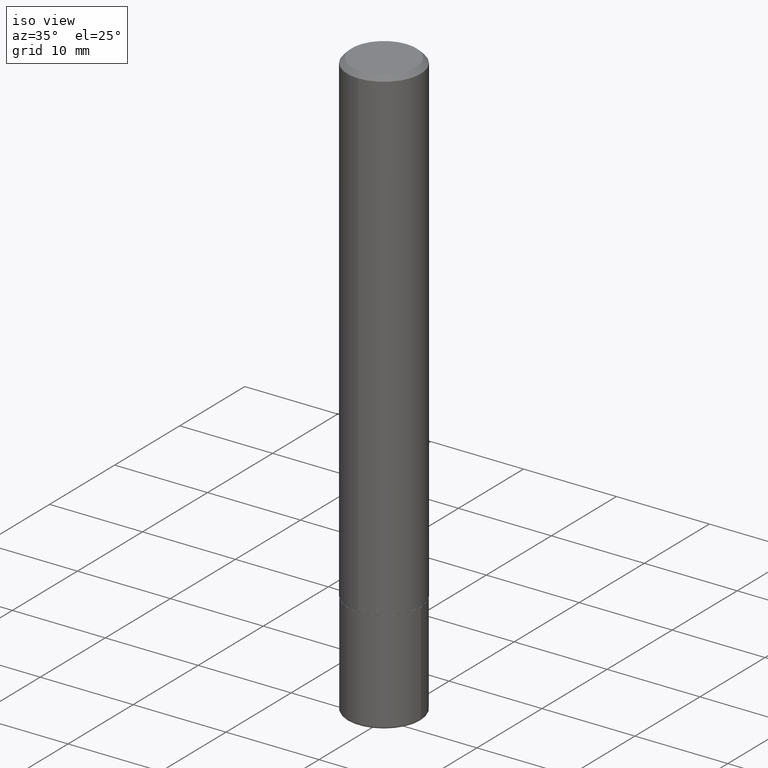
[diagram: clean part render]
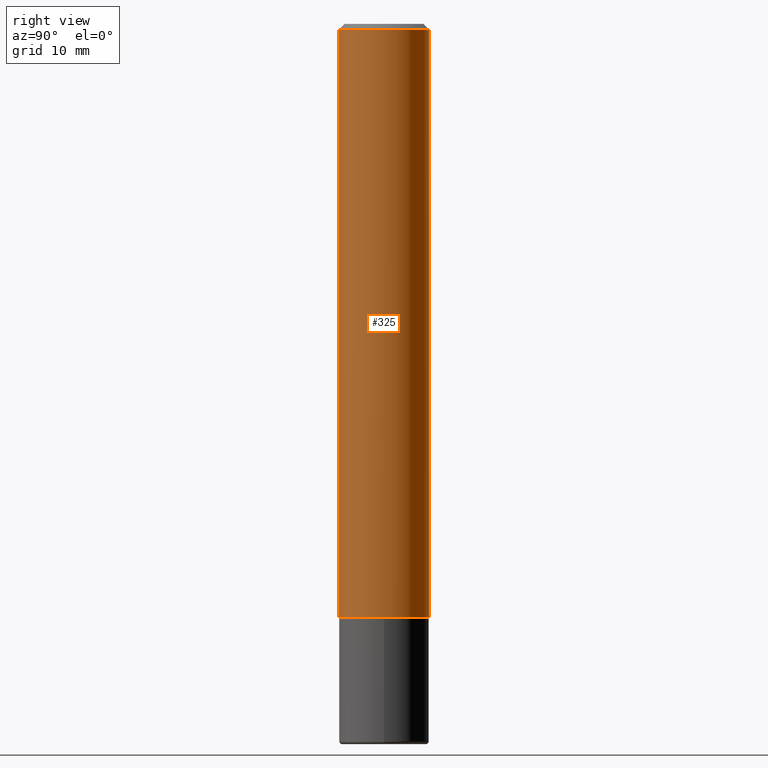
[diagram: tour spotlight — one face highlighted and labeled with its STEP entity id]
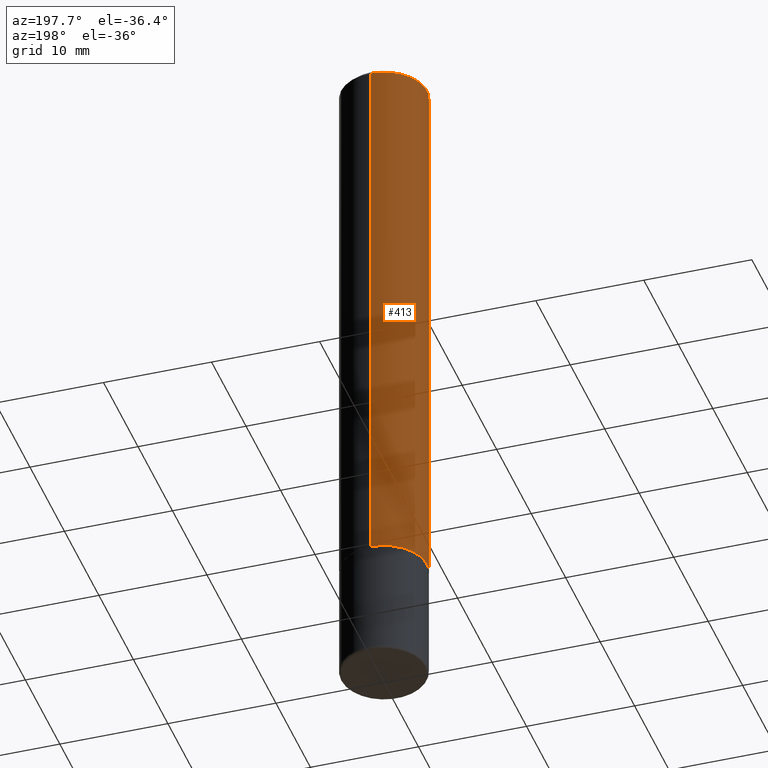
[diagram: tour spotlight — one face highlighted and labeled with its STEP entity id]
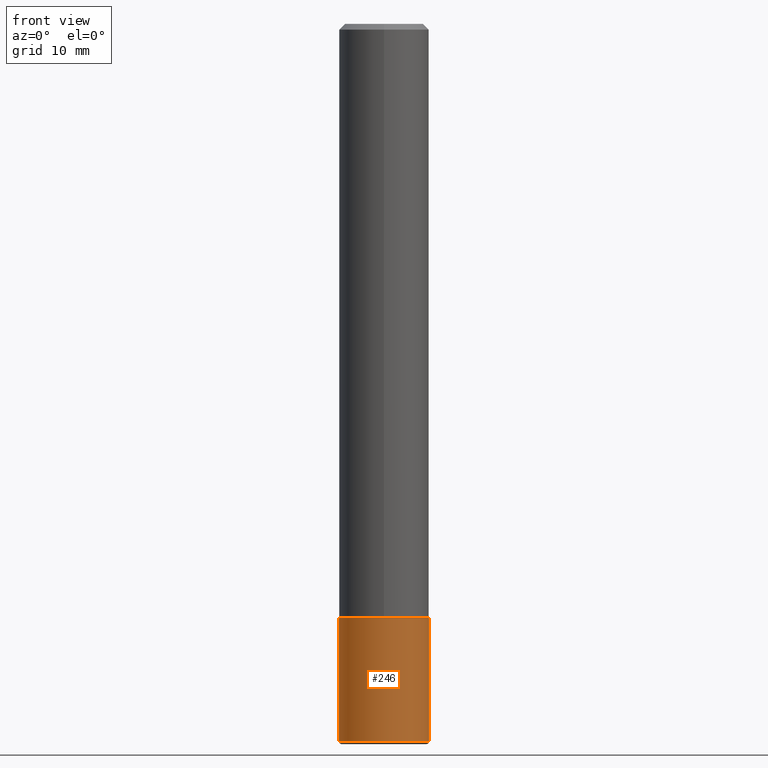
[diagram: tour spotlight — one face highlighted and labeled with its STEP entity id]
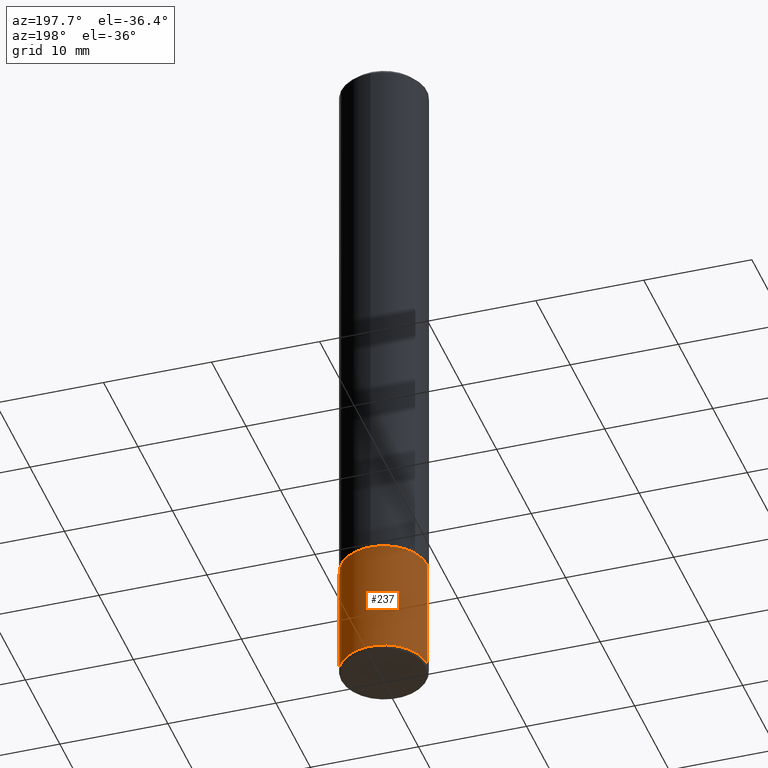
[diagram: tour spotlight — one face highlighted and labeled with its STEP entity id]
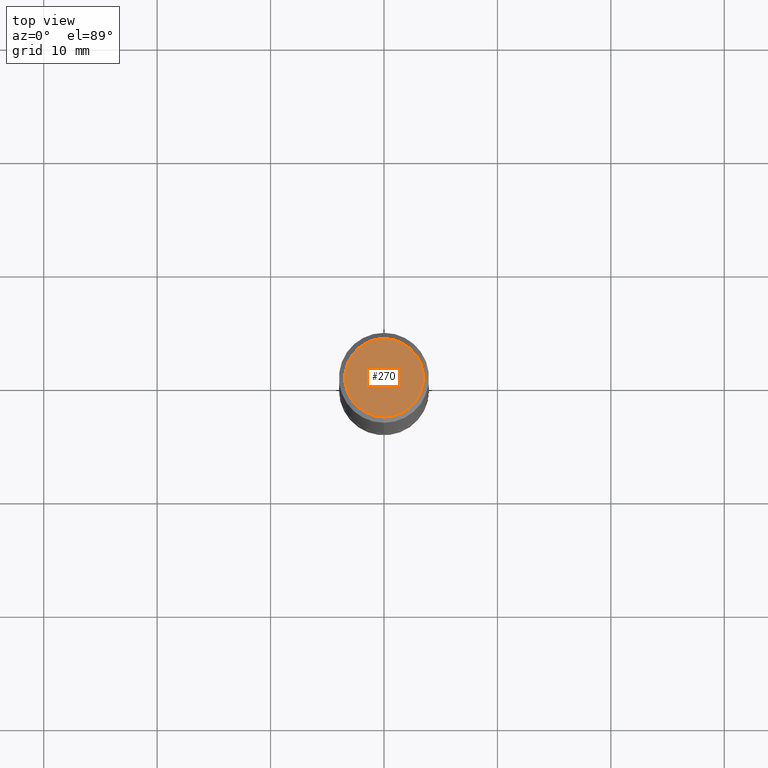
[diagram: tour spotlight — one face highlighted and labeled with its STEP entity id]
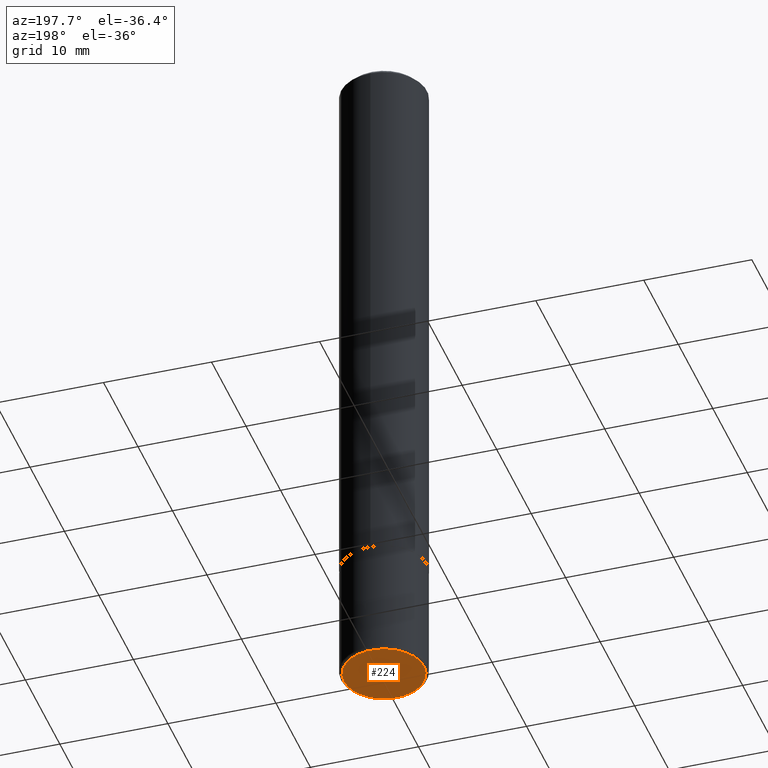
[diagram: tour spotlight — one face highlighted and labeled with its STEP entity id]
A machine part: a face-by-face anatomy tour. The part has 14 B-rep faces; the first image is the clean iso view, then the 6 largest visible faces are spotlighted one at a time (largest first), each with its STEP entity span.

Face 1 — right view, entity #325. In plain terms, the highlighted cylindrical surface (partial cylindrical patch) has radius 3.9688 mm, axis along (-0, 0, 1).
Definition (entity closure, byte-faithful):
#13 = VERTEX_POINT ( 'NONE', #221 ) ;
#34 = CARTESIAN_POINT ( 'NONE',  ( 5.042467530478845729E-29, -7.196065419597043772E-15, -2.061500000000000110 ) ) ;
#46 = VERTEX_POINT ( 'NONE', #78 ) ;
#70 = CARTESIAN_POINT ( 'NONE',  ( 1.091087918388479765E-15, 0.1562499999999999722, -0.02000000000000057981 ) ) ;
#78 = CARTESIAN_POINT ( 'NONE',  ( -1.071952812151801412E-15, -0.1562500000000001110, -0.01999999999999948694 ) ) ;
#79 = EDGE_CURVE ( 'NONE', #13, #134, #203, .T. ) ;
#84 = DIRECTION ( 'NONE',  ( -2.446018690506352654E-29, 3.490693873197692271E-15, 1.000000000000000000 ) ) ;
#86 = DIRECTION ( 'NONE',  ( -2.446018690506352654E-29, 3.490693873197692271E-15, 1.000000000000000000 ) ) ;
#90 = EDGE_LOOP ( 'NONE', ( #137, #186, #416, #202 ) ) ;
#91 = AXIS2_PLACEMENT_3D ( 'NONE', #245, #284, #372 ) ;
#110 = CARTESIAN_POINT ( 'NONE',  ( -1.091087918388479962E-15, -0.1562500000000001388, 5.454209176871399228E-16 ) ) ;
#120 = AXIS2_PLACEMENT_3D ( 'NONE', #34, #260, #158 ) ;
#122 = CIRCLE ( 'NONE', #265, 0.1562500000000000278 ) ;
#134 = VERTEX_POINT ( 'NONE', #70 ) ;
#135 = CARTESIAN_POINT ( 'NONE',  ( 1.110223024625157329E-15, 0.1562500000000001388, -5.454209176871399228E-16 ) ) ;
#137 = ORIENTED_EDGE ( 'NONE', *, *, #393, .T. ) ;
#158 = DIRECTION ( 'NONE',  ( -6.982962677686265922E-15, -1.000000000000000000, 3.496765431890251398E-15 ) ) ;
#173 = CARTESIAN_POINT ( 'NONE',  ( -1.091087918388430264E-15, -0.1562500000000074385, -2.061499999999999666 ) ) ;
#175 = VECTOR ( 'NONE', #401, 39.37007874015748143 ) ;
#186 = ORIENTED_EDGE ( 'NONE', *, *, #79, .T. ) ;
#202 = ORIENTED_EDGE ( 'NONE', *, *, #332, .F. ) ;
#203 = LINE ( 'NONE', #135, #175 ) ;
#221 = CARTESIAN_POINT ( 'NONE',  ( 1.110223024625183362E-15, 0.1562499999999930334, -2.061500000000000554 ) ) ;
#245 = CARTESIAN_POINT ( 'NONE',  ( 0.000000000000000000, 0.000000000000000000, 0.000000000000000000 ) ) ;
#260 = DIRECTION ( 'NONE',  ( -2.446018690506352654E-29, 3.490693873197692271E-15, 1.000000000000000000 ) ) ;
#265 = AXIS2_PLACEMENT_3D ( 'NONE', #377, #86, #347 ) ;
#284 = DIRECTION ( 'NONE',  ( -2.446018690506352654E-29, 3.490693873197692271E-15, 1.000000000000000000 ) ) ;
#314 = FACE_OUTER_BOUND ( 'NONE', #90, .T. ) ;
#325 = ADVANCED_FACE ( 'NONE', ( #314 ), #402, .T. ) ;
#328 = VECTOR ( 'NONE', #84, 39.37007874015748143 ) ;
#332 = EDGE_CURVE ( 'NONE', #370, #46, #335, .T. ) ;
#335 = LINE ( 'NONE', #110, #328 ) ;
#341 = EDGE_CURVE ( 'NONE', #46, #134, #122, .T. ) ;
#347 = DIRECTION ( 'NONE',  ( -6.982962677686266711E-15, -1.000000000000000000, 3.496765431890256131E-15 ) ) ;
#370 = VERTEX_POINT ( 'NONE', #173 ) ;
#372 = DIRECTION ( 'NONE',  ( -6.982962677686265922E-15, -1.000000000000000000, 3.490693873197692271E-15 ) ) ;
#377 = CARTESIAN_POINT ( 'NONE',  ( 4.892037381012713785E-31, -6.981387746395396129E-17, -0.02000000000000003511 ) ) ;
#383 = CIRCLE ( 'NONE', #120, 0.1562500000000002498 ) ;
#393 = EDGE_CURVE ( 'NONE', #370, #13, #383, .T. ) ;
#401 = DIRECTION ( 'NONE',  ( -2.446018690506352654E-29, 3.490693873197692271E-15, 1.000000000000000000 ) ) ;
#402 = CYLINDRICAL_SURFACE ( 'NONE', #91, 0.1562500000000001388 ) ;
#416 = ORIENTED_EDGE ( 'NONE', *, *, #341, .F. ) ;

Face 2 — auxiliary view, entity #413. In plain terms, the highlighted cylindrical surface (partial cylindrical patch) has radius 3.9688 mm, axis along (-0, 0, 1).
Definition (entity closure, byte-faithful):
#13 = VERTEX_POINT ( 'NONE', #221 ) ;
#19 = ORIENTED_EDGE ( 'NONE', *, *, #187, .F. ) ;
#29 = CIRCLE ( 'NONE', #231, 0.1562500000000002498 ) ;
#45 = ORIENTED_EDGE ( 'NONE', *, *, #332, .T. ) ;
#46 = VERTEX_POINT ( 'NONE', #78 ) ;
#47 = DIRECTION ( 'NONE',  ( -6.982962677686266711E-15, -1.000000000000000000, 3.496765431890256131E-15 ) ) ;
#69 = DIRECTION ( 'NONE',  ( -6.982962677686265922E-15, -1.000000000000000000, 3.496765431890251398E-15 ) ) ;
#70 = CARTESIAN_POINT ( 'NONE',  ( 1.091087918388479765E-15, 0.1562499999999999722, -0.02000000000000057981 ) ) ;
#74 = DIRECTION ( 'NONE',  ( -2.446018690506352654E-29, 3.490693873197692271E-15, 1.000000000000000000 ) ) ;
#78 = CARTESIAN_POINT ( 'NONE',  ( -1.071952812151801412E-15, -0.1562500000000001110, -0.01999999999999948694 ) ) ;
#79 = EDGE_CURVE ( 'NONE', #13, #134, #203, .T. ) ;
#80 = DIRECTION ( 'NONE',  ( -6.982962677686265922E-15, -1.000000000000000000, 3.490693873197692271E-15 ) ) ;
#84 = DIRECTION ( 'NONE',  ( -2.446018690506352654E-29, 3.490693873197692271E-15, 1.000000000000000000 ) ) ;
#110 = CARTESIAN_POINT ( 'NONE',  ( -1.091087918388479962E-15, -0.1562500000000001388, 5.454209176871399228E-16 ) ) ;
#134 = VERTEX_POINT ( 'NONE', #70 ) ;
#135 = CARTESIAN_POINT ( 'NONE',  ( 1.110223024625157329E-15, 0.1562500000000001388, -5.454209176871399228E-16 ) ) ;
#151 = EDGE_CURVE ( 'NONE', #13, #370, #29, .T. ) ;
#164 = CIRCLE ( 'NONE', #400, 0.1562500000000000278 ) ;
#173 = CARTESIAN_POINT ( 'NONE',  ( -1.091087918388430264E-15, -0.1562500000000074385, -2.061499999999999666 ) ) ;
#175 = VECTOR ( 'NONE', #401, 39.37007874015748143 ) ;
#187 = EDGE_CURVE ( 'NONE', #134, #46, #164, .T. ) ;
#201 = AXIS2_PLACEMENT_3D ( 'NONE', #339, #364, #80 ) ;
#203 = LINE ( 'NONE', #135, #175 ) ;
#221 = CARTESIAN_POINT ( 'NONE',  ( 1.110223024625183362E-15, 0.1562499999999930334, -2.061500000000000554 ) ) ;
#222 = DIRECTION ( 'NONE',  ( -2.446018690506352654E-29, 3.490693873197692271E-15, 1.000000000000000000 ) ) ;
#225 = FACE_OUTER_BOUND ( 'NONE', #386, .T. ) ;
#231 = AXIS2_PLACEMENT_3D ( 'NONE', #418, #222, #69 ) ;
#236 = ORIENTED_EDGE ( 'NONE', *, *, #151, .T. ) ;
#240 = CARTESIAN_POINT ( 'NONE',  ( 4.892037381012713785E-31, -6.981387746395396129E-17, -0.02000000000000003511 ) ) ;
#268 = ORIENTED_EDGE ( 'NONE', *, *, #79, .F. ) ;
#291 = CYLINDRICAL_SURFACE ( 'NONE', #201, 0.1562500000000001388 ) ;
#328 = VECTOR ( 'NONE', #84, 39.37007874015748143 ) ;
#332 = EDGE_CURVE ( 'NONE', #370, #46, #335, .T. ) ;
#335 = LINE ( 'NONE', #110, #328 ) ;
#339 = CARTESIAN_POINT ( 'NONE',  ( 0.000000000000000000, 0.000000000000000000, 0.000000000000000000 ) ) ;
#364 = DIRECTION ( 'NONE',  ( -2.446018690506352654E-29, 3.490693873197692271E-15, 1.000000000000000000 ) ) ;
#370 = VERTEX_POINT ( 'NONE', #173 ) ;
#386 = EDGE_LOOP ( 'NONE', ( #268, #236, #45, #19 ) ) ;
#400 = AXIS2_PLACEMENT_3D ( 'NONE', #240, #74, #47 ) ;
#401 = DIRECTION ( 'NONE',  ( -2.446018690506352654E-29, 3.490693873197692271E-15, 1.000000000000000000 ) ) ;
#413 = ADVANCED_FACE ( 'NONE', ( #225 ), #291, .T. ) ;
#418 = CARTESIAN_POINT ( 'NONE',  ( 5.042467530478845729E-29, -7.196065419597043772E-15, -2.061500000000000110 ) ) ;

Face 3 — front view, entity #246. In plain terms, the highlighted cylindrical surface (partial cylindrical patch) has radius 3.9688 mm, axis along (-0, 0, 1).
Definition (entity closure, byte-faithful):
#24 = CARTESIAN_POINT ( 'NONE',  ( -0.1562500000000000000, 1.110223024625156540E-15, -7.685836078523291160E-30 ) ) ;
#26 = ORIENTED_EDGE ( 'NONE', *, *, #262, .F. ) ;
#42 = AXIS2_PLACEMENT_3D ( 'NONE', #141, #276, #344 ) ;
#43 = CARTESIAN_POINT ( 'NONE',  ( -0.1562500000000000000, -6.837261372916553606E-15, -2.062500000000000000 ) ) ;
#54 = VERTEX_POINT ( 'NONE', #331 ) ;
#57 = DIRECTION ( 'NONE',  ( -2.445468806185136877E-29, 3.491481338843145188E-15, 1.000000000000000000 ) ) ;
#59 = CIRCLE ( 'NONE', #293, 0.1562500000000000000 ) ;
#63 = VERTEX_POINT ( 'NONE', #43 ) ;
#73 = ORIENTED_EDGE ( 'NONE', *, *, #326, .T. ) ;
#98 = EDGE_CURVE ( 'NONE', #63, #54, #59, .T. ) ;
#141 = CARTESIAN_POINT ( 'NONE',  ( 6.089217327400989947E-29, -8.693788533719431716E-15, -2.489999999999999769 ) ) ;
#161 = AXIS2_PLACEMENT_3D ( 'NONE', #182, #185, #349 ) ;
#182 = CARTESIAN_POINT ( 'NONE',  ( 0.000000000000000000, 0.000000000000000000, 0.000000000000000000 ) ) ;
#185 = DIRECTION ( 'NONE',  ( -2.445468806185136597E-29, 3.491481338843145583E-15, 1.000000000000000000 ) ) ;
#206 = DIRECTION ( 'NONE',  ( -2.445468806185136597E-29, 3.491481338843145583E-15, 1.000000000000000000 ) ) ;
#207 = CIRCLE ( 'NONE', #42, 0.1562500000000000000 ) ;
#213 = CYLINDRICAL_SURFACE ( 'NONE', #161, 0.1562500000000000000 ) ;
#214 = CARTESIAN_POINT ( 'NONE',  ( 0.1562500000000000000, -1.091087918388479174E-15, 7.619026212181150377E-30 ) ) ;
#217 = VERTEX_POINT ( 'NONE', #399 ) ;
#243 = VECTOR ( 'NONE', #57, 39.37007874015748143 ) ;
#246 = ADVANCED_FACE ( 'NONE', ( #405 ), #213, .T. ) ;
#248 = LINE ( 'NONE', #214, #243 ) ;
#262 = EDGE_CURVE ( 'NONE', #217, #63, #319, .T. ) ;
#276 = DIRECTION ( 'NONE',  ( -2.445468806185136597E-29, 3.491481338843145583E-15, 1.000000000000000000 ) ) ;
#277 = DIRECTION ( 'NONE',  ( 1.000000000000000000, -6.982962677686269077E-15, 0.000000000000000000 ) ) ;
#293 = AXIS2_PLACEMENT_3D ( 'NONE', #369, #206, #277 ) ;
#302 = ORIENTED_EDGE ( 'NONE', *, *, #98, .F. ) ;
#306 = ORIENTED_EDGE ( 'NONE', *, *, #381, .T. ) ;
#312 = VERTEX_POINT ( 'NONE', #324 ) ;
#315 = VECTOR ( 'NONE', #411, 39.37007874015748143 ) ;
#319 = LINE ( 'NONE', #24, #315 ) ;
#324 = CARTESIAN_POINT ( 'NONE',  ( 0.1562499999999999167, -9.784876452107911678E-15, -2.489999999999999769 ) ) ;
#326 = EDGE_CURVE ( 'NONE', #217, #312, #207, .T. ) ;
#331 = CARTESIAN_POINT ( 'NONE',  ( 0.1562500000000000000, -8.292268179752468540E-15, -2.062500000000000000 ) ) ;
#344 = DIRECTION ( 'NONE',  ( 1.000000000000000000, -6.982962677686269077E-15, 0.000000000000000000 ) ) ;
#349 = DIRECTION ( 'NONE',  ( 1.000000000000000000, -6.982962677686266711E-15, 4.876176775795936353E-29 ) ) ;
#369 = CARTESIAN_POINT ( 'NONE',  ( 5.043779412756844791E-29, -7.201180261363988578E-15, -2.062500000000000000 ) ) ;
#380 = EDGE_LOOP ( 'NONE', ( #26, #73, #306, #302 ) ) ;
#381 = EDGE_CURVE ( 'NONE', #312, #54, #248, .T. ) ;
#399 = CARTESIAN_POINT ( 'NONE',  ( -0.1562499999999999167, -7.583565509094276753E-15, -2.489999999999999769 ) ) ;
#405 = FACE_OUTER_BOUND ( 'NONE', #380, .T. ) ;
#411 = DIRECTION ( 'NONE',  ( -2.445468806185136877E-29, 3.491481338843145188E-15, 1.000000000000000000 ) ) ;

Face 4 — auxiliary view, entity #237. In plain terms, the highlighted cylindrical surface (partial cylindrical patch) has radius 3.9688 mm, axis along (-0, 0, 1).
Definition (entity closure, byte-faithful):
#14 = ORIENTED_EDGE ( 'NONE', *, *, #351, .F. ) ;
#21 = DIRECTION ( 'NONE',  ( -2.445468806185136597E-29, 3.491481338843145583E-15, 1.000000000000000000 ) ) ;
#24 = CARTESIAN_POINT ( 'NONE',  ( -0.1562500000000000000, 1.110223024625156540E-15, -7.685836078523291160E-30 ) ) ;
#27 = DIRECTION ( 'NONE',  ( 1.000000000000000000, -6.982962677686266711E-15, 4.876176775795936353E-29 ) ) ;
#43 = CARTESIAN_POINT ( 'NONE',  ( -0.1562500000000000000, -6.837261372916553606E-15, -2.062500000000000000 ) ) ;
#54 = VERTEX_POINT ( 'NONE', #331 ) ;
#55 = CARTESIAN_POINT ( 'NONE',  ( 5.043779412756844791E-29, -7.201180261363988578E-15, -2.062500000000000000 ) ) ;
#57 = DIRECTION ( 'NONE',  ( -2.445468806185136877E-29, 3.491481338843145188E-15, 1.000000000000000000 ) ) ;
#63 = VERTEX_POINT ( 'NONE', #43 ) ;
#81 = ORIENTED_EDGE ( 'NONE', *, *, #118, .T. ) ;
#85 = CIRCLE ( 'NONE', #191, 0.1562500000000000000 ) ;
#87 = CYLINDRICAL_SURFACE ( 'NONE', #100, 0.1562500000000000000 ) ;
#100 = AXIS2_PLACEMENT_3D ( 'NONE', #283, #382, #27 ) ;
#118 = EDGE_CURVE ( 'NONE', #312, #217, #181, .T. ) ;
#124 = EDGE_LOOP ( 'NONE', ( #81, #147, #14, #176 ) ) ;
#146 = DIRECTION ( 'NONE',  ( 1.000000000000000000, -6.982962677686269077E-15, 0.000000000000000000 ) ) ;
#147 = ORIENTED_EDGE ( 'NONE', *, *, #262, .T. ) ;
#153 = CARTESIAN_POINT ( 'NONE',  ( 6.089217327400989947E-29, -8.693788533719431716E-15, -2.489999999999999769 ) ) ;
#176 = ORIENTED_EDGE ( 'NONE', *, *, #381, .F. ) ;
#181 = CIRCLE ( 'NONE', #200, 0.1562500000000000000 ) ;
#191 = AXIS2_PLACEMENT_3D ( 'NONE', #55, #21, #146 ) ;
#200 = AXIS2_PLACEMENT_3D ( 'NONE', #153, #406, #228 ) ;
#214 = CARTESIAN_POINT ( 'NONE',  ( 0.1562500000000000000, -1.091087918388479174E-15, 7.619026212181150377E-30 ) ) ;
#217 = VERTEX_POINT ( 'NONE', #399 ) ;
#228 = DIRECTION ( 'NONE',  ( 1.000000000000000000, -6.982962677686269077E-15, 0.000000000000000000 ) ) ;
#237 = ADVANCED_FACE ( 'NONE', ( #313 ), #87, .T. ) ;
#243 = VECTOR ( 'NONE', #57, 39.37007874015748143 ) ;
#248 = LINE ( 'NONE', #214, #243 ) ;
#262 = EDGE_CURVE ( 'NONE', #217, #63, #319, .T. ) ;
#283 = CARTESIAN_POINT ( 'NONE',  ( 0.000000000000000000, 0.000000000000000000, 0.000000000000000000 ) ) ;
#312 = VERTEX_POINT ( 'NONE', #324 ) ;
#313 = FACE_OUTER_BOUND ( 'NONE', #124, .T. ) ;
#315 = VECTOR ( 'NONE', #411, 39.37007874015748143 ) ;
#319 = LINE ( 'NONE', #24, #315 ) ;
#324 = CARTESIAN_POINT ( 'NONE',  ( 0.1562499999999999167, -9.784876452107911678E-15, -2.489999999999999769 ) ) ;
#331 = CARTESIAN_POINT ( 'NONE',  ( 0.1562500000000000000, -8.292268179752468540E-15, -2.062500000000000000 ) ) ;
#351 = EDGE_CURVE ( 'NONE', #54, #63, #85, .T. ) ;
#381 = EDGE_CURVE ( 'NONE', #312, #54, #248, .T. ) ;
#382 = DIRECTION ( 'NONE',  ( -2.445468806185136597E-29, 3.491481338843145583E-15, 1.000000000000000000 ) ) ;
#399 = CARTESIAN_POINT ( 'NONE',  ( -0.1562499999999999167, -7.583565509094276753E-15, -2.489999999999999769 ) ) ;
#406 = DIRECTION ( 'NONE',  ( -2.445468806185136597E-29, 3.491481338843145583E-15, 1.000000000000000000 ) ) ;
#411 = DIRECTION ( 'NONE',  ( -2.445468806185136877E-29, 3.491481338843145188E-15, 1.000000000000000000 ) ) ;

Face 5 — top view, entity #270. In plain terms, the highlighted planar face has unit normal (0, -0, -1).
Definition (entity closure, byte-faithful):
#2 = AXIS2_PLACEMENT_3D ( 'NONE', #417, #358, #94 ) ;
#6 = DIRECTION ( 'NONE',  ( -2.446018690506352654E-29, 3.490693873197692271E-15, 1.000000000000000000 ) ) ;
#17 = VERTEX_POINT ( 'NONE', #290 ) ;
#32 = EDGE_CURVE ( 'NONE', #17, #387, #66, .T. ) ;
#38 = DIRECTION ( 'NONE',  ( 2.446018690506352373E-29, -3.490693873197692271E-15, -1.000000000000000000 ) ) ;
#64 = DIRECTION ( 'NONE',  ( -6.982962677686266711E-15, -1.000000000000000000, 3.490693873197693060E-15 ) ) ;
#66 = CIRCLE ( 'NONE', #2, 0.1362500000000000377 ) ;
#72 = AXIS2_PLACEMENT_3D ( 'NONE', #371, #6, #64 ) ;
#94 = DIRECTION ( 'NONE',  ( -6.982962677686266711E-15, -1.000000000000000000, 3.490693873197693060E-15 ) ) ;
#101 = PLANE ( 'NONE',  #271 ) ;
#130 = CARTESIAN_POINT ( 'NONE',  ( 9.514286648347541549E-16, 0.1362500000000000377, -4.756606863202822775E-16 ) ) ;
#145 = ORIENTED_EDGE ( 'NONE', *, *, #32, .T. ) ;
#160 = DIRECTION ( 'NONE',  ( 6.982962677686265922E-15, 1.000000000000000000, -3.490693873197692271E-15 ) ) ;
#193 = CARTESIAN_POINT ( 'NONE',  ( 1.021258291611616861E-15, 0.1362500000000000377, -4.757143324173787538E-16 ) ) ;
#226 = FACE_OUTER_BOUND ( 'NONE', #353, .T. ) ;
#255 = ORIENTED_EDGE ( 'NONE', *, *, #311, .T. ) ;
#270 = ADVANCED_FACE ( 'NONE', ( #226 ), #101, .F. ) ;
#271 = AXIS2_PLACEMENT_3D ( 'NONE', #130, #38, #160 ) ;
#290 = CARTESIAN_POINT ( 'NONE',  ( -1.003347832174086278E-15, -0.1362500000000000377, 4.754997480289927501E-16 ) ) ;
#311 = EDGE_CURVE ( 'NONE', #387, #17, #357, .T. ) ;
#353 = EDGE_LOOP ( 'NONE', ( #255, #145 ) ) ;
#357 = CIRCLE ( 'NONE', #72, 0.1362500000000000377 ) ;
#358 = DIRECTION ( 'NONE',  ( -2.446018690506352654E-29, 3.490693873197692271E-15, 1.000000000000000000 ) ) ;
#371 = CARTESIAN_POINT ( 'NONE',  ( 2.624387123415071162E-48, -3.745242049114306587E-34, -1.072921941929966994E-19 ) ) ;
#387 = VERTEX_POINT ( 'NONE', #193 ) ;
#417 = CARTESIAN_POINT ( 'NONE',  ( 2.624387123415071162E-48, -3.745242049114306587E-34, -1.072921941929966994E-19 ) ) ;

Face 6 — auxiliary view, entity #224. In plain terms, the highlighted planar face has unit normal (0, -0, -1).
Definition (entity closure, byte-faithful):
#5 = EDGE_CURVE ( 'NONE', #220, #170, #373, .T. ) ;
#49 = CARTESIAN_POINT ( 'NONE',  ( -0.1462500000000000189, -7.636550052576496041E-15, -2.499999999999999556 ) ) ;
#82 = FACE_OUTER_BOUND ( 'NONE', #108, .T. ) ;
#108 = EDGE_LOOP ( 'NONE', ( #212, #239 ) ) ;
#131 = DIRECTION ( 'NONE',  ( 2.438088387897960049E-29, -3.491481338843145188E-15, -1.000000000000000000 ) ) ;
#132 = CARTESIAN_POINT ( 'NONE',  ( 6.113672015462840371E-29, -8.728703347107863365E-15, -2.499999999999999556 ) ) ;
#154 = AXIS2_PLACEMENT_3D ( 'NONE', #132, #337, #307 ) ;
#167 = CARTESIAN_POINT ( 'NONE',  ( 0.1462500000000000189, -9.749961638719478451E-15, -2.499999999999999556 ) ) ;
#170 = VERTEX_POINT ( 'NONE', #49 ) ;
#177 = DIRECTION ( 'NONE',  ( -1.000000000000000000, 6.982962677686265922E-15, -4.876176775795935793E-29 ) ) ;
#190 = AXIS2_PLACEMENT_3D ( 'NONE', #404, #244, #258 ) ;
#205 = PLANE ( 'NONE',  #350 ) ;
#212 = ORIENTED_EDGE ( 'NONE', *, *, #5, .F. ) ;
#220 = VERTEX_POINT ( 'NONE', #167 ) ;
#224 = ADVANCED_FACE ( 'NONE', ( #82 ), #205, .T. ) ;
#239 = ORIENTED_EDGE ( 'NONE', *, *, #299, .F. ) ;
#244 = DIRECTION ( 'NONE',  ( -2.445468806185136597E-29, 3.491481338843145583E-15, 1.000000000000000000 ) ) ;
#258 = DIRECTION ( 'NONE',  ( 1.000000000000000000, -6.982962677686264344E-15, 0.000000000000000000 ) ) ;
#299 = EDGE_CURVE ( 'NONE', #170, #220, #305, .T. ) ;
#305 = CIRCLE ( 'NONE', #154, 0.1462500000000000189 ) ;
#307 = DIRECTION ( 'NONE',  ( 1.000000000000000000, -6.982962677686264344E-15, 0.000000000000000000 ) ) ;
#337 = DIRECTION ( 'NONE',  ( -2.445468806185136597E-29, 3.491481338843145583E-15, 1.000000000000000000 ) ) ;
#338 = CARTESIAN_POINT ( 'NONE',  ( 1.263551563285417854E-28, 6.109479132827826125E-16, -2.500000000000000000 ) ) ;
#350 = AXIS2_PLACEMENT_3D ( 'NONE', #338, #131, #177 ) ;
#373 = CIRCLE ( 'NONE', #190, 0.1462500000000000189 ) ;
#404 = CARTESIAN_POINT ( 'NONE',  ( 6.113672015462840371E-29, -8.728703347107863365E-15, -2.499999999999999556 ) ) ;